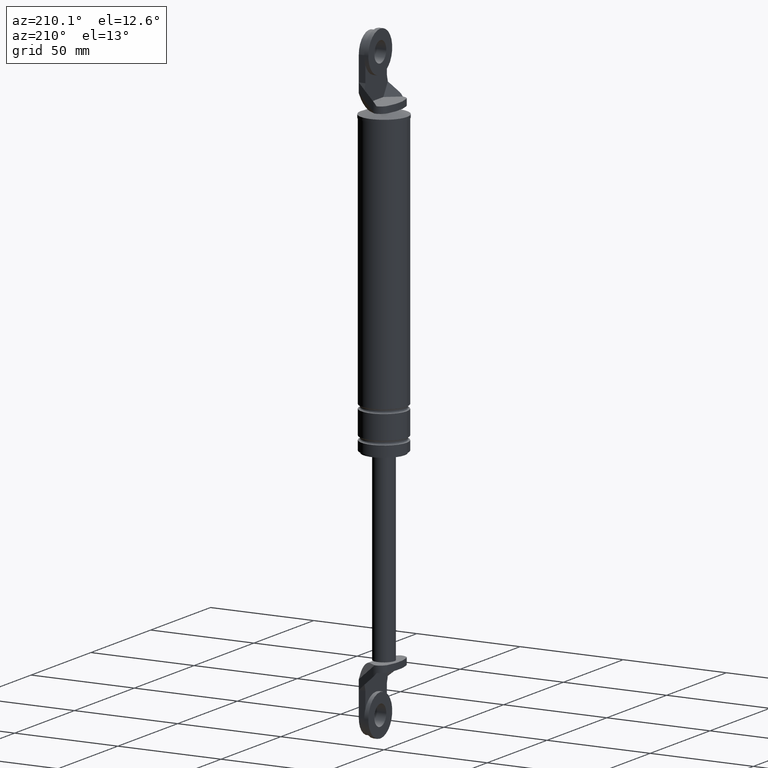
[diagram: clean part render]
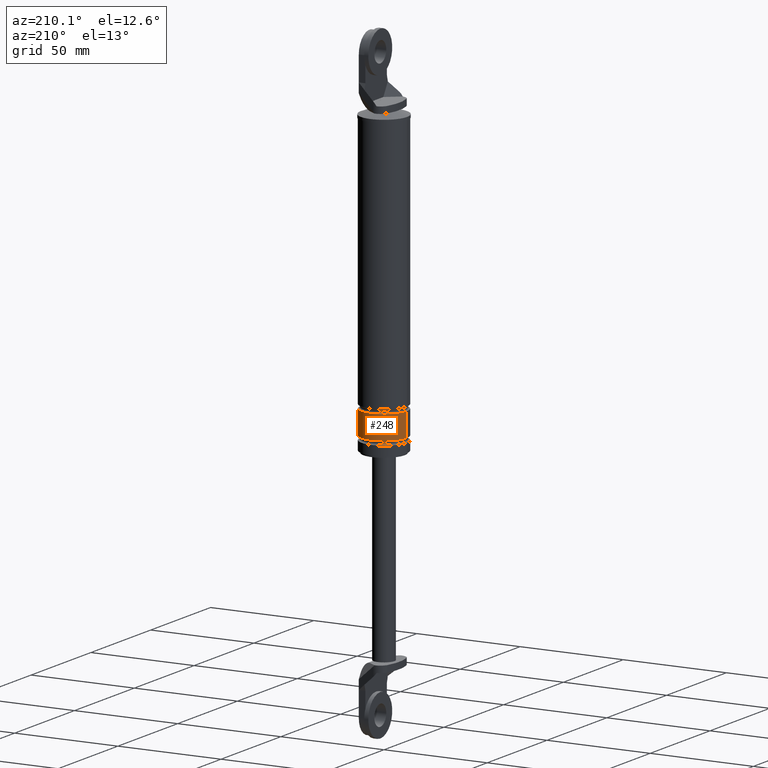
[diagram: same view with one face highlighted and labeled with its STEP entity id]
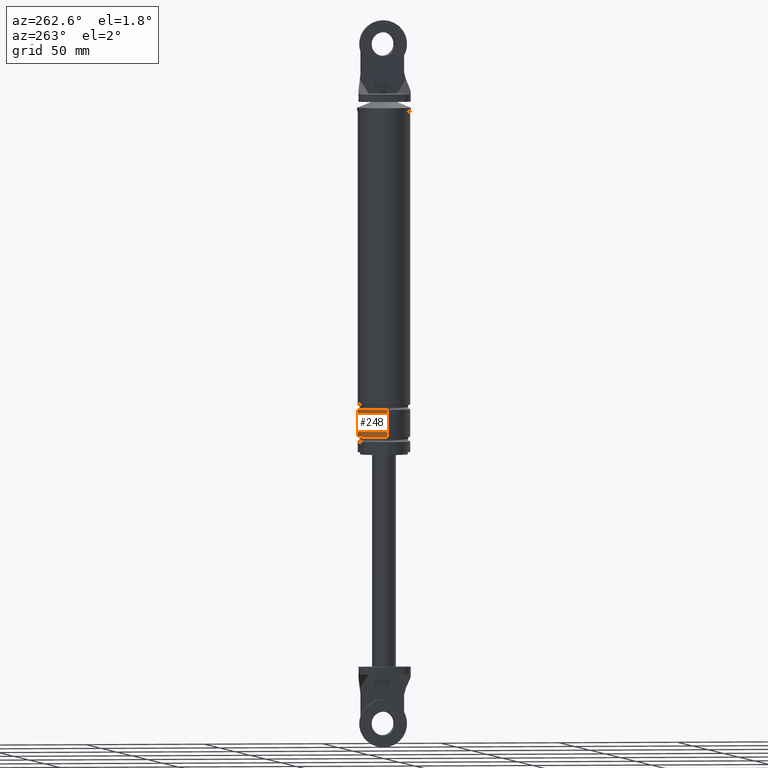
[diagram: same view with one face highlighted and labeled with its STEP entity id]
A machine part, auxiliary view. The second image highlights one B-rep face of the part: STEP entity #248.
A second angle (auxiliary view) of the same face is appended — the face is thin or edge-on in the first view.
In plain terms, the highlighted cylindrical surface (edge-blend (fillet) strip) has radius 11 mm, axis along (0, 0, 1).
Its self-contained STEP definition (entity closure, byte-faithful):
#248=ADVANCED_FACE('',(#737),#736,.T.);
#736=CYLINDRICAL_SURFACE('',#1440,1.10000000000E+001);
#737=FACE_OUTER_BOUND('',#1441,.T.);
#1437=CARTESIAN_POINT('',(0.00000000000E+000,3.58204186421E-014,0.00000000000E+000));
#1438=DIRECTION('',(-0.00000000000E+000,-0.00000000000E+000,1.00000000000E+000));
#1439=DIRECTION('',(1.00000000000E+000,0.00000000000E+000,0.00000000000E+000));
#1440=AXIS2_PLACEMENT_3D('',#1437,#1438,#1439);
#1441=EDGE_LOOP('',(#1988,#1989,#1990,#1991));
#1988=ORIENTED_EDGE('',*,*,#2293,.T.);
#1989=ORIENTED_EDGE('',*,*,#2294,.F.);
#1990=ORIENTED_EDGE('',*,*,#2295,.F.);
#1991=ORIENTED_EDGE('',*,*,#2296,.T.);
#2293=EDGE_CURVE('',#3136,#3137,#3138,.T.);
#2294=EDGE_CURVE('',#3144,#3137,#3145,.T.);
#2295=EDGE_CURVE('',#3151,#3144,#3152,.T.);
#2296=EDGE_CURVE('',#3151,#3136,#3158,.T.);
#3136=VERTEX_POINT('',#4179);
#3137=VERTEX_POINT('',#4180);
#3138=CIRCLE('',#4184,1.10000000000E+001);
#3144=VERTEX_POINT('',#4185);
#3145=(BOUNDED_CURVE() B_SPLINE_CURVE(1,(#4186,#4187),.UNSPECIFIED.,.F.,.F.) B_SPLINE_CURVE_WITH_KNOTS((2,2),(8.33333343261E-002,9.16666667006E-001),.UNSPECIFIED.) CURVE() GEOMETRIC_REPRESENTATION_ITEM() RATIONAL_B_SPLINE_CURVE((1.00000000000E+000,1.00000000000E+000)) REPRESENTATION_ITEM('') );
#3151=VERTEX_POINT('',#4188);
#3152=CIRCLE('',#4192,1.10000000000E+001);
#3158=(BOUNDED_CURVE() B_SPLINE_CURVE(1,(#4193,#4194),.UNSPECIFIED.,.F.,.F.) B_SPLINE_CURVE_WITH_KNOTS((2,2),(8.33333333333E-002,9.16666666667E-001),.UNSPECIFIED.) CURVE() GEOMETRIC_REPRESENTATION_ITEM() RATIONAL_B_SPLINE_CURVE((7.50000000000E-001,7.50000000000E-001)) REPRESENTATION_ITEM('') );
#4179=CARTESIAN_POINT('',(-1.10000000000E+001,3.58204186421E-014,-4.00000150000E+001));
#4180=CARTESIAN_POINT('',(1.10000000000E+001,3.61192557345E-014,-4.00000150000E+001));
#4181=CARTESIAN_POINT('',(0.00000000000E+000,3.58204186421E-014,-4.00000150000E+001));
#4182=DIRECTION('',(-0.00000000000E+000,0.00000000000E+000,-1.00000000000E+000));
#4183=DIRECTION('',(-1.00000000000E+000,-1.22460635382E-016,0.00000000000E+000));
#4184=AXIS2_PLACEMENT_3D('',#4181,#4182,#4183);
#4185=CARTESIAN_POINT('',(1.10000000000E+001,3.61192557345E-014,-5.15000150000E+001));
#4186=CARTESIAN_POINT('',(1.10000000000E+001,3.58204186421E-014,-5.15000149863E+001));
#4187=CARTESIAN_POINT('',(1.10000000000E+001,3.58204186421E-014,-4.00000149953E+001));
#4188=CARTESIAN_POINT('',(-1.10000000000E+001,3.58204186421E-014,-5.15000150000E+001));
#4189=CARTESIAN_POINT('',(0.00000000000E+000,3.58204186421E-014,-5.15000150000E+001));
#4190=DIRECTION('',(-0.00000000000E+000,0.00000000000E+000,-1.00000000000E+000));
#4191=DIRECTION('',(-1.00000000000E+000,-1.22460635382E-016,0.00000000000E+000));
#4192=AXIS2_PLACEMENT_3D('',#4189,#4190,#4191);
#4193=CARTESIAN_POINT('',(-1.10000000000E+001,3.55271367880E-014,-5.15000150000E+001));
#4194=CARTESIAN_POINT('',(-1.10000000000E+001,3.55271367880E-014,-4.00000150000E+001));